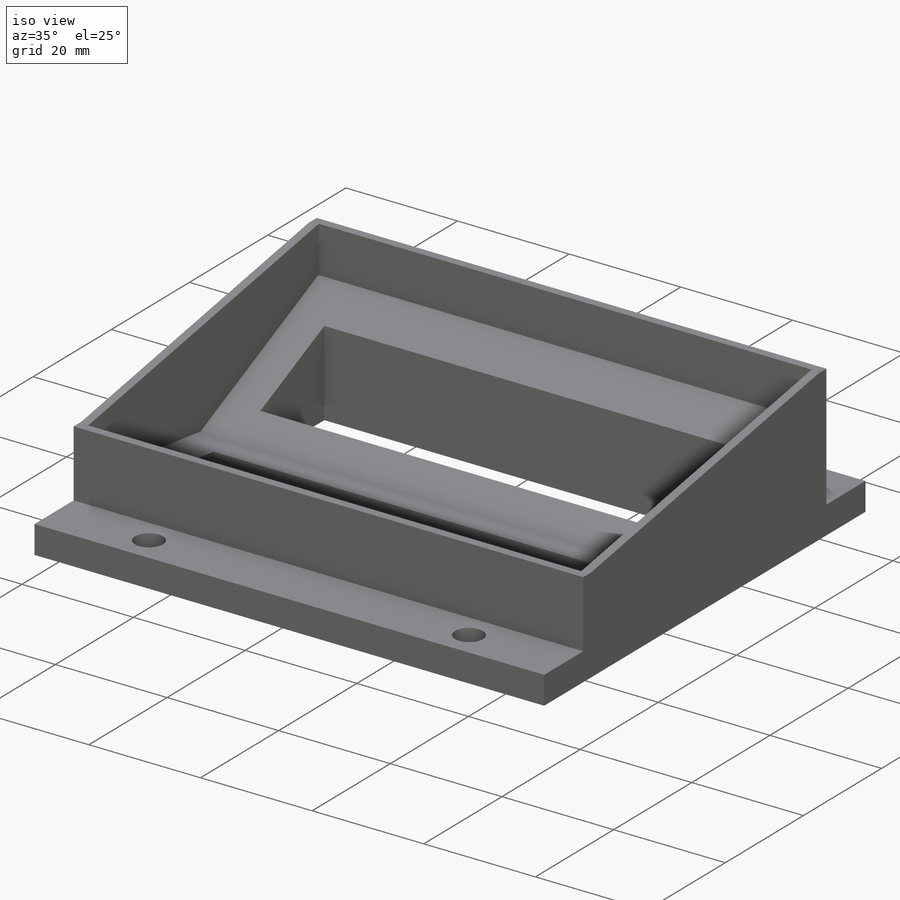
[diagram: iso view]
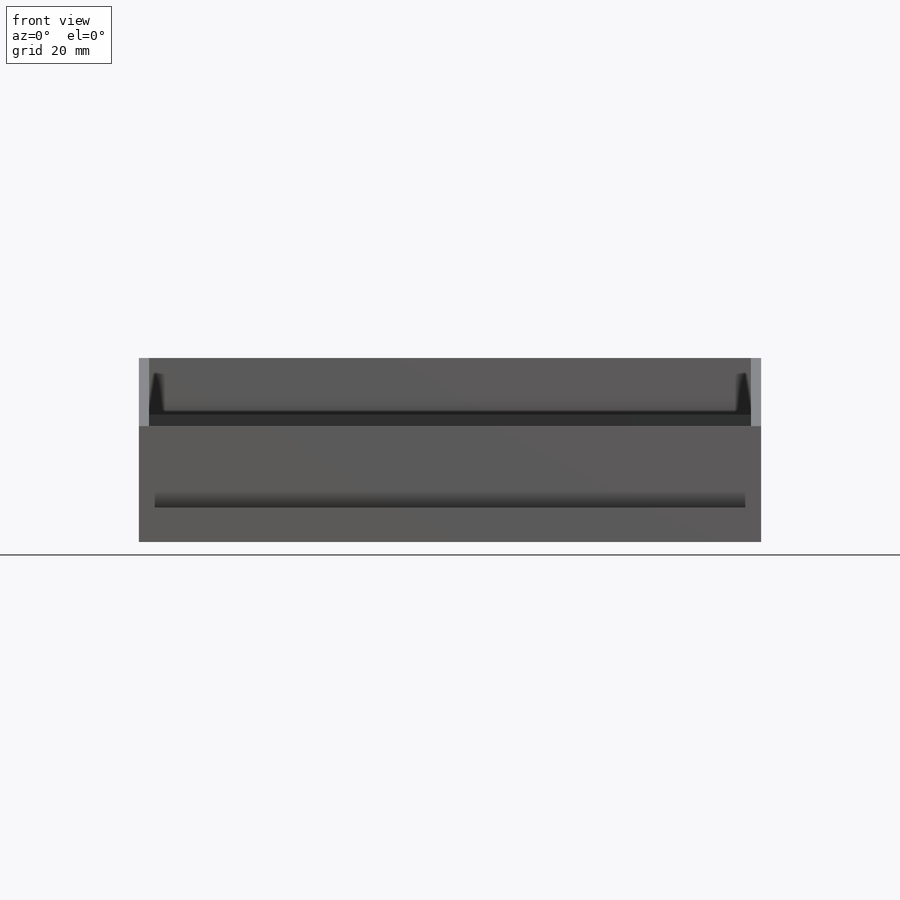
[diagram: front view]
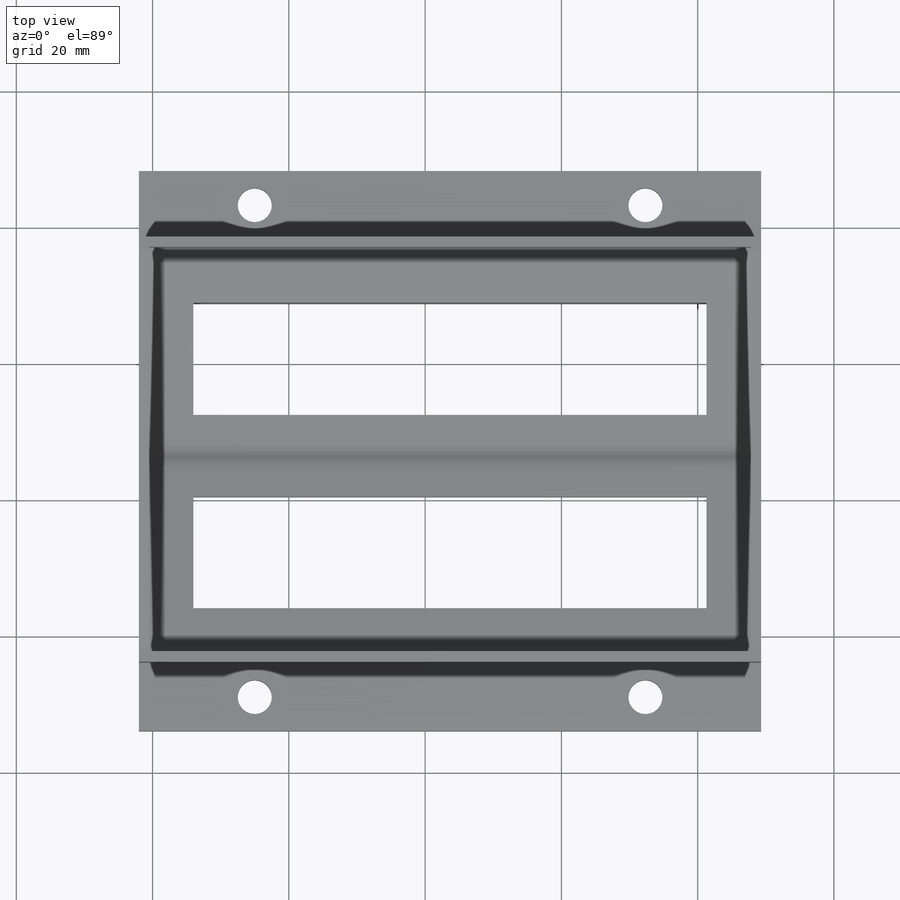
[diagram: top view]
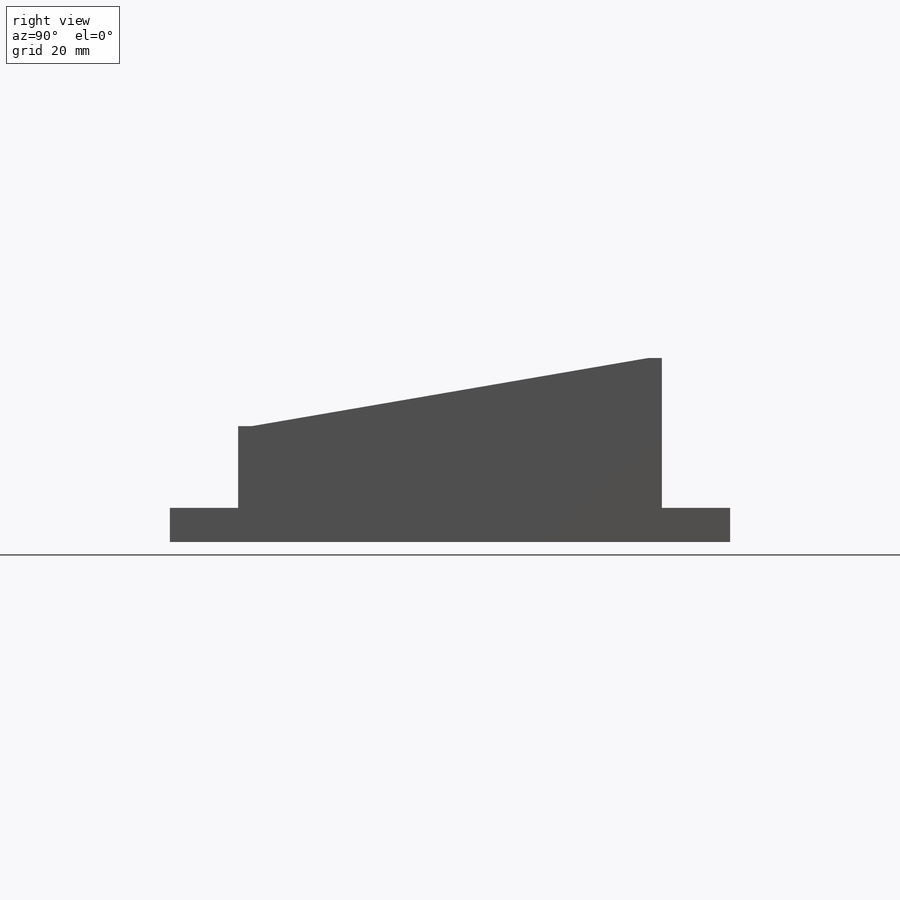
[diagram: right view]
SOLIDWORKS PART (.sldprt)
format: sldprt  version: not decoded by parser v0  size: 361,984 bytes
history: native  units: mm
features: sketch x9, cut_extrude x6, extrude x3, material x1, pattern_linear x1 (+13 scaffold rows collapsed)
feature tree (33):
  scaffold x13  (default folders/planes/origin — collapsed)
  material  "Material <not specified>"
  sketch  "Sketch1"  dims[c1.D1=~43.528569mm c2.D1=24.65deg c2.D2=~104.098672mm c3.D2=7.07deg c3.D3=28.36mm c3.D4=29.84mm c3.D5=12.0mm c3.D6=12.0mm c3.D7=0.0mm c3.D8=5.0mm]
  extrude  "Boss-Extrude1"  Depth=87.3mm
  sketch  "Sketch2"  dims[D1=5.0mm D2=15.0mm D3=5.0mm D6=5.0mm D7=15.0mm D4=2.0 D5=2.0]
  cut_extrude  "Cut-Extrude1"  [1 undecoded]
  sketch  "Sketch3"  dims[D1=6.0mm D2=6.0mm D3=6.0mm D4=6.0mm]
  cut_extrude  "Cut-Extrude2"  [1 undecoded]
  sketch  "Sketch4"  dims[D1=12.0mm D2=2.0mm D3=2.0mm D4=22.0mm]
  extrude  "Boss-Extrude2"  [1 undecoded]
  sketch  "Sketch8"
  extrude  "Boss-Extrude16"  Depth=2mm
  pattern_linear  "LPattern1"  Count1=2 Count2=1 Spacing1=89.3mm Spacing2=10mm
  sketch  "Sketch12"
  cut_extrude  "Cut-Extrude4"  Depth=0.5mm
  sketch  "Sketch13"
  cut_extrude  "Cut-Extrude5"  Depth=0.5mm
  sketch  "Sketch14"
  cut_extrude  "Cut-Extrude6"  Depth=0.5mm
  sketch  "Sketch15"
  cut_extrude  "Cut-Extrude7"  Depth=0.5mm
decode coverage: 11 of 19 modeling features carry decoded parameters
note: ~ marks probable driven/reference dimensions
note: 3 parameter values undecoded
summary: no parameter record found for 3 features
note: suppression state not decoded; provenance and decode notes live in map.json
